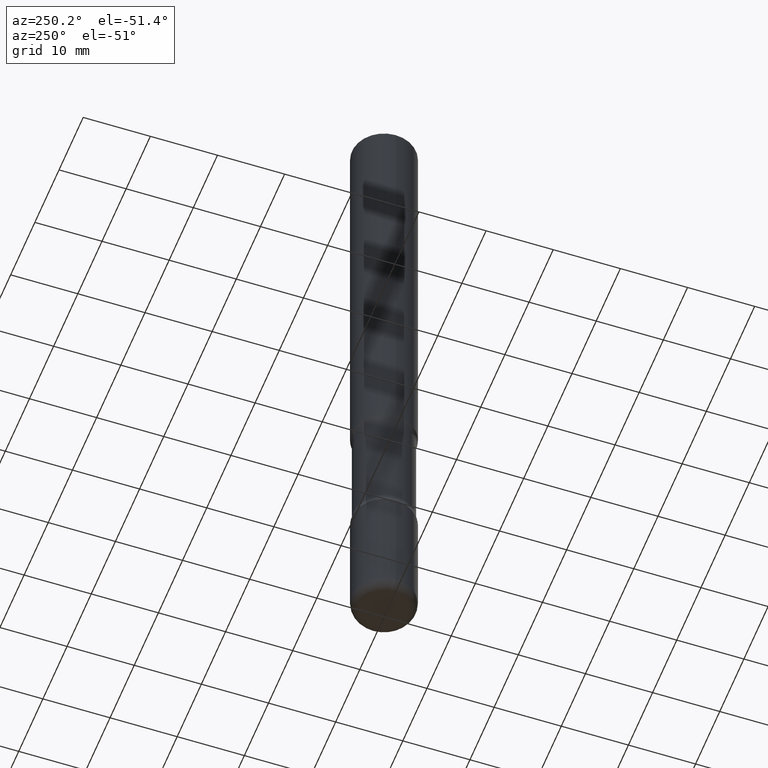
[diagram: clean part render]
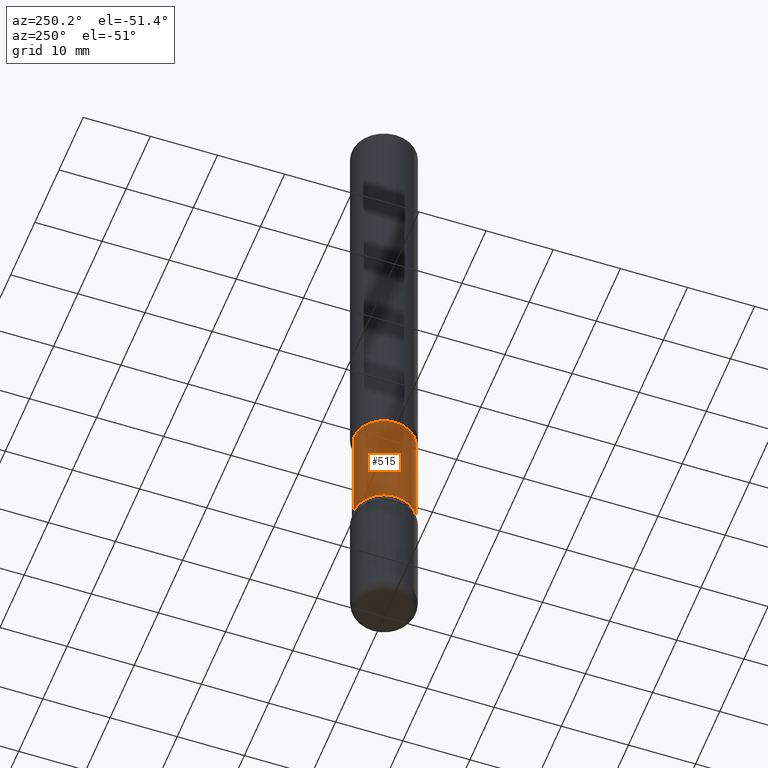
[diagram: same view with one face highlighted and labeled with its STEP entity id]
A machine part, auxiliary view. The second image highlights one B-rep face of the part: STEP entity #515.
In plain terms, the highlighted cylindrical surface (edge-blend (fillet) strip) has radius 4.5244 mm, axis along (0, -0, -1).
Its self-contained STEP definition (entity closure, byte-faithful):
#1 = CARTESIAN_POINT ( 'NONE',  ( -1.222026205852954821E-15, -0.1781250000000138001, -3.999999999999999556 ) ) ;
#19 = DIRECTION ( 'NONE',  ( 6.982962677686265133E-15, 1.000000000000000000, -3.067338098149349483E-15 ) ) ;
#37 = EDGE_CURVE ( 'NONE', #463, #108, #360, .T. ) ;
#42 = AXIS2_PLACEMENT_3D ( 'NONE', #318, #112, #19 ) ;
#56 = CARTESIAN_POINT ( 'NONE',  ( 1.243840226962943961E-15, 0.1781249999999887368, -3.202504112020092553 ) ) ;
#108 = VERTEX_POINT ( 'NONE', #56 ) ;
#112 = DIRECTION ( 'NONE',  ( 2.558681667686983511E-29, -3.329354077496592524E-15, -1.000000000000000000 ) ) ;
#113 = AXIS2_PLACEMENT_3D ( 'NONE', #495, #119, #465 ) ;
#119 = DIRECTION ( 'NONE',  ( 2.558681667686983511E-29, -3.329354077496592524E-15, -1.000000000000000000 ) ) ;
#124 = DIRECTION ( 'NONE',  ( 2.558681667686983511E-29, -3.329354077496592524E-15, -1.000000000000000000 ) ) ;
#127 = VECTOR ( 'NONE', #134, 39.37007874015748143 ) ;
#133 = VERTEX_POINT ( 'NONE', #485 ) ;
#134 = DIRECTION ( 'NONE',  ( 2.558681667686983511E-29, -3.329354077496592524E-15, -1.000000000000000000 ) ) ;
#139 = CARTESIAN_POINT ( 'NONE',  ( 1.243840226962964471E-15, 0.1781249999999861278, -4.000000000000000888 ) ) ;
#145 = CARTESIAN_POINT ( 'NONE',  ( -1.254184790217529307E-15, -0.1781250000000111355, -3.202504112020091220 ) ) ;
#150 = EDGE_CURVE ( 'NONE', #282, #108, #241, .T. ) ;
#197 = CYLINDRICAL_SURFACE ( 'NONE', #113, 0.1781249999999999500 ) ;
#241 = CIRCLE ( 'NONE', #42, 0.1781249999999999223 ) ;
#263 = EDGE_CURVE ( 'NONE', #133, #463, #448, .T. ) ;
#282 = VERTEX_POINT ( 'NONE', #145 ) ;
#289 = FACE_OUTER_BOUND ( 'NONE', #434, .T. ) ;
#318 = CARTESIAN_POINT ( 'NONE',  ( 7.826246762236988201E-29, -1.118918372292999451E-14, -3.202504112020091664 ) ) ;
#328 = CARTESIAN_POINT ( 'NONE',  ( 1.243840226962927197E-15, 0.1781249999999909572, -2.547495887979909224 ) ) ;
#346 = EDGE_CURVE ( 'NONE', #133, #282, #517, .T. ) ;
#348 = ORIENTED_EDGE ( 'NONE', *, *, #37, .T. ) ;
#360 = LINE ( 'NONE', #139, #127 ) ;
#403 = AXIS2_PLACEMENT_3D ( 'NONE', #423, #415, #462 ) ;
#410 = ORIENTED_EDGE ( 'NONE', *, *, #346, .F. ) ;
#415 = DIRECTION ( 'NONE',  ( 2.558681667686983511E-29, -3.329354077496592524E-15, -1.000000000000000000 ) ) ;
#423 = CARTESIAN_POINT ( 'NONE',  ( 6.150289227201164007E-29, -9.008429421428009851E-15, -2.547495887979908780 ) ) ;
#434 = EDGE_LOOP ( 'NONE', ( #410, #454, #348, #499 ) ) ;
#448 = CIRCLE ( 'NONE', #403, 0.1781249999999999500 ) ;
#454 = ORIENTED_EDGE ( 'NONE', *, *, #263, .T. ) ;
#462 = DIRECTION ( 'NONE',  ( 6.982962677686266711E-15, 1.000000000000000000, -3.067338098149349089E-15 ) ) ;
#463 = VERTEX_POINT ( 'NONE', #328 ) ;
#465 = DIRECTION ( 'NONE',  ( 6.982962677686266711E-15, 1.000000000000000000, -3.067338098149349089E-15 ) ) ;
#485 = CARTESIAN_POINT ( 'NONE',  ( -1.254184790217547253E-15, -0.1781250000000089706, -2.547495887979908336 ) ) ;
#495 = CARTESIAN_POINT ( 'NONE',  ( 9.866784870866931853E-29, -1.384432990936266734E-14, -4.000000000000000000 ) ) ;
#497 = VECTOR ( 'NONE', #124, 39.37007874015748143 ) ;
#499 = ORIENTED_EDGE ( 'NONE', *, *, #150, .F. ) ;
#515 = ADVANCED_FACE ( 'NONE', ( #289 ), #197, .T. ) ;
#517 = LINE ( 'NONE', #1, #497 ) ;